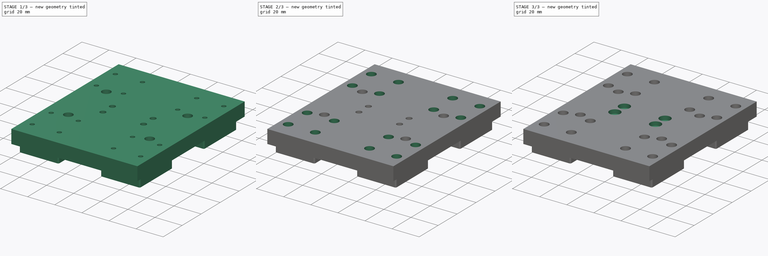
[diagram: build sequence overview — one tinted view per stage of 3, left to right]
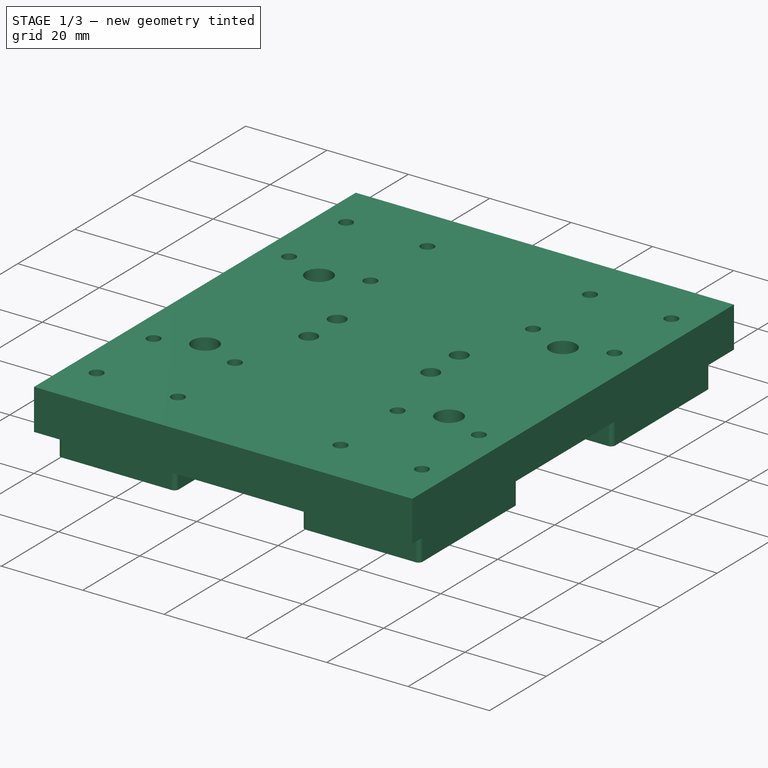
[diagram: stage 1 of 3 — iso view after this stage's code; geometry added in this stage tinted green]
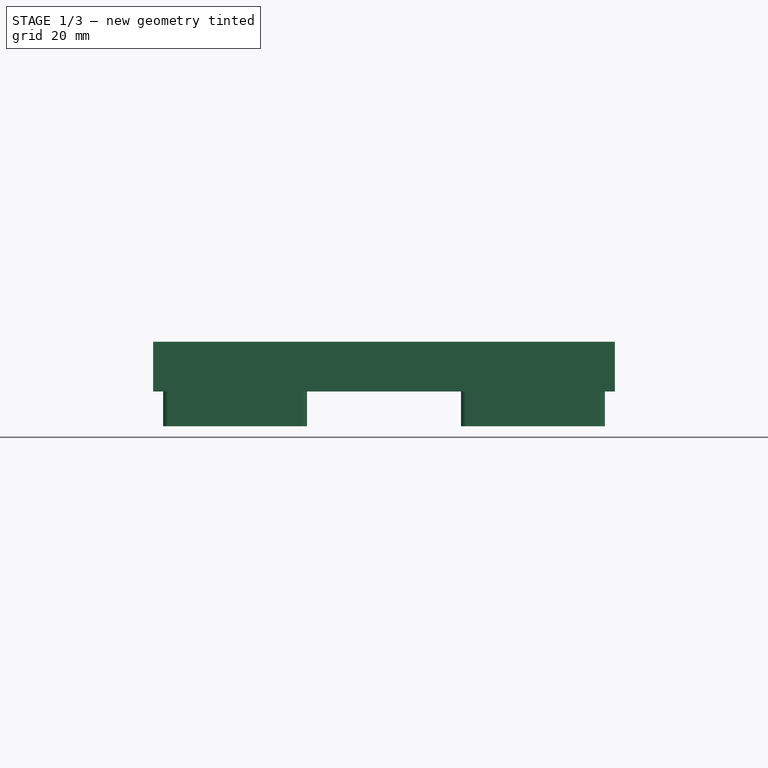
[diagram: stage 1 of 3 — front view after this stage's code; geometry added in this stage tinted green]
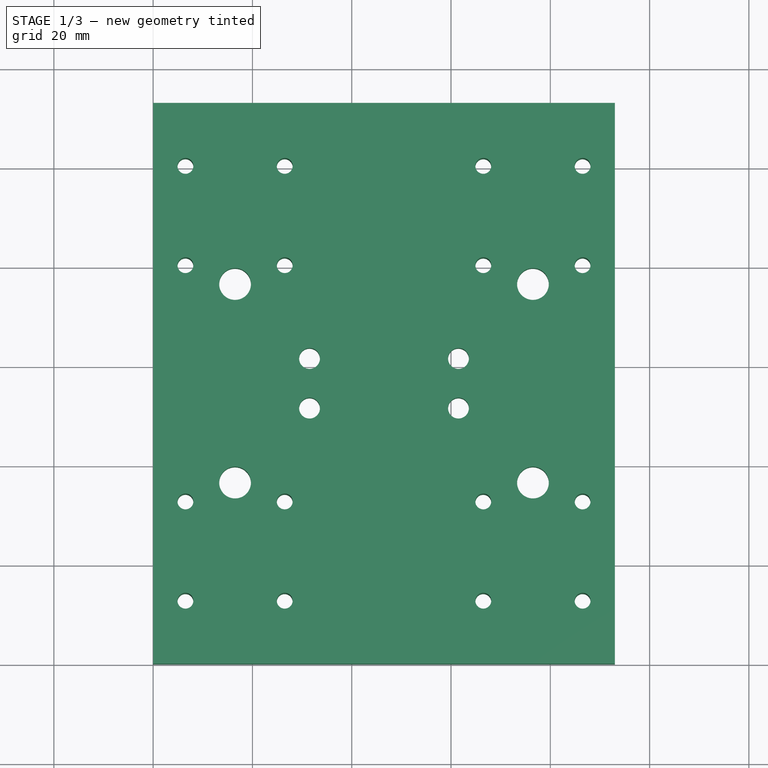
[diagram: stage 1 of 3 — top view after this stage's code; geometry added in this stage tinted green]
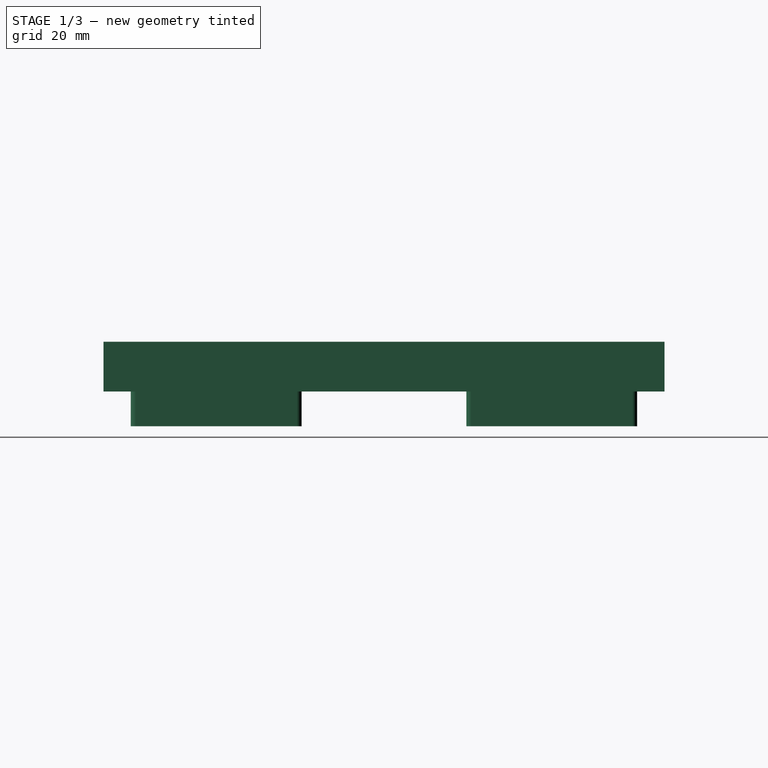
[diagram: stage 1 of 3 — right view after this stage's code; geometry added in this stage tinted green]
FCSTD DOCUMENT  (FreeCAD 0.19R24267 (Git))
Label: carriageplate-mgn12b
License: All rights reserved
LicenseURL: http://en.wikipedia.org/wiki/All_rights_reserved
objects: Sketcher::SketchObject×5, PartDesign::Pocket×4, PartDesign::Pad×1, PartDesign::Body×1
note: 16 computed .brp shape members not serialized (recipe doc carries the construction recipe); baked Part::Feature solids carry a one-line shape summary decoded from their .brp

FEATURE [Sketcher::SketchObject] Sketch  label="carriageplate-Bemaßung M3,M4,M6"
  FullyConstrained = true
  MapMode = 5
  Support = -> [XY_Plane]
  sketch-geometry (54):
    g0: LineSegment StartX=0 StartY=0 StartZ=0 EndX=93 EndY=0 EndZ=0
    g1: LineSegment StartX=93 StartY=0 StartZ=0 EndX=93 EndY=113 EndZ=0
    g2: LineSegment StartX=93 StartY=113 StartZ=0 EndX=0 EndY=113 EndZ=0
    g3: LineSegment StartX=0 StartY=113 StartZ=0 EndX=0 EndY=0 EndZ=0
    g4: LineSegment StartX=31.5 StartY=61.5 StartZ=0 EndX=61.5 EndY=61.5 EndZ=0
    g5: LineSegment StartX=61.5 StartY=61.5 StartZ=0 EndX=61.5 EndY=51.5 EndZ=0
    g6: LineSegment StartX=61.5 StartY=51.5 StartZ=0 EndX=31.5 EndY=51.5 EndZ=0
    g7: LineSegment StartX=31.5 StartY=51.5 StartZ=0 EndX=31.5 EndY=61.5 EndZ=0
    g8: Circle CenterX=31.5 CenterY=61.5 CenterZ=0 NormalX=0 NormalY=0 NormalZ=1 AngleXU=0 Radius=2.1
    g9: Circle CenterX=61.5 CenterY=61.5 CenterZ=0 NormalX=0 NormalY=0 NormalZ=1 AngleXU=0 Radius=2.1
    g10: Circle CenterX=61.5 CenterY=51.5 CenterZ=0 NormalX=0 NormalY=0 NormalZ=1 AngleXU=0 Radius=2.1
    g11: Circle CenterX=31.5 CenterY=51.5 CenterZ=0 NormalX=0 NormalY=0 NormalZ=1 AngleXU=0 Radius=2.1
    g12: LineSegment StartX=6.5 StartY=100.3 StartZ=0 EndX=26.5 EndY=100.3 EndZ=0
    g13: LineSegment StartX=26.5 StartY=100.3 StartZ=0 EndX=26.5 EndY=80.3 EndZ=0
    g14: LineSegment StartX=26.5 StartY=80.3 StartZ=0 EndX=6.5 EndY=80.3 EndZ=0
    g15: LineSegment StartX=6.5 StartY=80.3 StartZ=0 EndX=6.5 EndY=100.3 EndZ=0
    g16: Circle CenterX=6.5 CenterY=100.3 CenterZ=0 NormalX=0 NormalY=0 NormalZ=1 AngleXU=0 Radius=1.6
    g17: Circle CenterX=26.5 CenterY=100.3 CenterZ=0 NormalX=0 NormalY=0 NormalZ=1 AngleXU=0 Radius=1.6
    g18: Circle CenterX=26.5 CenterY=80.3 CenterZ=0 NormalX=0 NormalY=0 NormalZ=1 AngleXU=0 Radius=1.6
    g19: Circle CenterX=6.5 CenterY=80.3 CenterZ=0 NormalX=0 NormalY=0 NormalZ=1 AngleXU=0 Radius=1.6
    g20: Circle CenterX=26.5 CenterY=12.7 CenterZ=0 NormalX=0 NormalY=0 NormalZ=1 AngleXU=0 Radius=1.6
    g21: LineSegment StartX=26.5 StartY=12.7 StartZ=0 EndX=6.5 EndY=12.7 EndZ=0
    g22: Circle CenterX=6.5 CenterY=12.7 CenterZ=0 NormalX=0 NormalY=0 NormalZ=1 AngleXU=0 Radius=1.6
    g23: LineSegment StartX=6.5 StartY=12.7 StartZ=0 EndX=6.5 EndY=32.7 EndZ=0
    g24: Circle CenterX=6.5 CenterY=32.7 CenterZ=0 NormalX=0 NormalY=0 NormalZ=1 AngleXU=0 Radius=1.6
    g25: LineSegment StartX=6.5 StartY=32.7 StartZ=0 EndX=26.5 EndY=32.7 EndZ=0
    g26: Circle CenterX=26.5 CenterY=32.7 CenterZ=0 NormalX=0 NormalY=0 NormalZ=1 AngleXU=0 Radius=1.6
    g27: LineSegment StartX=26.5 StartY=32.7 StartZ=0 EndX=26.5 EndY=12.7 EndZ=0
    g28: Circle CenterX=66.5 CenterY=100.3 CenterZ=0 NormalX=0 NormalY=0 NormalZ=1 AngleXU=0 Radius=1.6
    g29: Circle CenterX=86.5 CenterY=100.3 CenterZ=0 NormalX=0 NormalY=0 NormalZ=1 AngleXU=0 Radius=1.6
    g30: LineSegment StartX=66.5 StartY=100.3 StartZ=0 EndX=86.5 EndY=100.3 EndZ=0
    g31: LineSegment StartX=86.5 StartY=100.3 StartZ=0 EndX=86.5 EndY=80.3 EndZ=0
    g32: Circle CenterX=86.5 CenterY=80.3 CenterZ=0 NormalX=0 NormalY=0 NormalZ=1 AngleXU=0 Radius=1.6
    g33: LineSegment StartX=86.5 StartY=80.3 StartZ=0 EndX=66.5 EndY=80.3 EndZ=0
    g34: Circle CenterX=66.5 CenterY=80.3 CenterZ=0 NormalX=0 NormalY=0 NormalZ=1 AngleXU=0 Radius=1.6
    g35: LineSegment StartX=66.5 StartY=80.3 StartZ=0 EndX=66.5 EndY=100.3 EndZ=0
    g36: LineSegment StartX=86.5 StartY=32.7 StartZ=0 EndX=86.5 EndY=12.7 EndZ=0
    g37: LineSegment StartX=86.5 StartY=12.7 StartZ=0 EndX=66.5 EndY=12.7 EndZ=0
    g38: LineSegment StartX=66.5 StartY=12.7 StartZ=0 EndX=66.5 EndY=32.7 EndZ=0
    g39: LineSegment StartX=66.5 StartY=32.7 StartZ=0 EndX=86.5 EndY=32.7 EndZ=0
    g40: Circle CenterX=66.5 CenterY=32.7 CenterZ=0 NormalX=0 NormalY=0 NormalZ=1 AngleXU=0 Radius=1.6
    g41: Circle CenterX=86.5 CenterY=32.7 CenterZ=0 NormalX=0 NormalY=0 NormalZ=1 AngleXU=0 Radius=1.6
    g42: Circle CenterX=86.5 CenterY=12.7 CenterZ=0 NormalX=0 NormalY=0 NormalZ=1 AngleXU=0 Radius=1.6
    g43: Circle CenterX=66.5 CenterY=12.7 CenterZ=0 NormalX=0 NormalY=0 NormalZ=1 AngleXU=0 Radius=1.6
    g44: LineSegment StartX=16.5 StartY=76.5 StartZ=0 EndX=76.5 EndY=76.5 EndZ=0
    g45: LineSegment StartX=76.5 StartY=76.5 StartZ=0 EndX=76.5 EndY=36.5 EndZ=0
    g46: LineSegment StartX=76.5 StartY=36.5 StartZ=0 EndX=16.5 EndY=36.5 EndZ=0
    g47: LineSegment StartX=16.5 StartY=36.5 StartZ=0 EndX=16.5 EndY=76.5 EndZ=0
    g48: Circle CenterX=16.5 CenterY=36.5 CenterZ=0 NormalX=0 NormalY=0 NormalZ=1 AngleXU=0 Radius=3.2
    g49: Circle CenterX=76.5 CenterY=36.5 CenterZ=0 NormalX=0 NormalY=0 NormalZ=1 AngleXU=0 Radius=3.2
    g50: Circle CenterX=76.5 CenterY=76.5 CenterZ=0 NormalX=0 NormalY=0 NormalZ=1 AngleXU=0 Radius=3.2
    g51: Circle CenterX=16.5 CenterY=76.5 CenterZ=0 NormalX=0 NormalY=0 NormalZ=1 AngleXU=0 Radius=3.2
    g52: LineSegment StartX=26.5 StartY=12.7 StartZ=0 EndX=66.5 EndY=12.7 EndZ=0
    g53: LineSegment StartX=66.5 StartY=100.3 StartZ=0 EndX=26.5 EndY=100.3 EndZ=0
  constraints (135):
    c: Coincident(g0,g1)
    c: Coincident(g1,g2)
    c: Coincident(g2,g3)
    c: Coincident(g3,g0)
    c: Horizontal(g0)
    c: Horizontal(g2)
    c: Vertical(g1)
    c: Vertical(g3)
    c: Coincident(g0,g-1)
    c: DistanceX(g2,g2) = 93
    c: DistanceY(g0,g2) = 113
    c: Coincident(g4,g5)
    c: Coincident(g5,g6)
    c: Coincident(g6,g7)
    c: Coincident(g7,g4)
    c: Horizontal(g4)
    c: Horizontal(g6)
    c: Vertical(g5)
    c: Vertical(g7)
    c: DistanceY(g7,g7) = 10
    c: DistanceX(g4,g4) = 30
    c: DistanceX(g0,g6) = 31.5
    c: Coincident(g8,g4)
    c: Coincident(g9,g4)
    c: Coincident(g10,g5)
    c: Coincident(g11,g6)
    c: Radius(g8) = 2.1
    c: Equal(g8,g9)
    c: Equal(g9,g10)
    c: Equal(g10,g11)
    c: Coincident(g12,g13)
    c: Coincident(g13,g14)
    c: Coincident(g14,g15)
    c: Coincident(g15,g12)
    c: Horizontal(g12)
    c: Horizontal(g14)
    c: Vertical(g13)
    c: Vertical(g15)
    c: DistanceX(g12,g12) = 20
    c: Equal(g12,g13)
    c: Coincident(g16,g12)
    c: Coincident(g17,g12)
    c: Coincident(g18,g13)
    c: Coincident(g19,g14)
    c: Radius(g16) = 1.6
    c: Equal(g16,g17)
    c: Equal(g17,g18)
    c: Equal(g18,g19)
    c: Coincident(g25,g27)
    c: Coincident(g27,g21)
    c: Coincident(g21,g23)
    c: Coincident(g23,g25)
    c: Horizontal(g25)
    c: Horizontal(g21)
    c: Vertical(g27)
    c: Vertical(g23)
    c: Equal(g12,g25) = 20
    c: Equal(g25,g27)
    c: Coincident(g24,g25)
    c: Coincident(g26,g25)
    c: Coincident(g20,g27)
    c: Coincident(g22,g21)
    c: Equal(g16,g24) = 1.6
    c: Equal(g24,g26)
    c: Equal(g26,g20)
    c: Equal(g20,g22)
    c: Coincident(g30,g31)
    c: Coincident(g31,g33)
    c: Coincident(g33,g35)
    c: Coincident(g35,g30)
    c: Horizontal(g30)
    c: Horizontal(g33)
    c: Vertical(g31)
    c: Vertical(g35)
    c: Equal(g12,g30) = 20
    c: Equal(g30,g31)
    c: Coincident(g28,g30)
    c: Coincident(g29,g30)
    c: Coincident(g32,g31)
    c: Coincident(g34,g33)
    c: Equal(g16,g28) = 1.6
    c: Equal(g28,g29)
    c: Equal(g29,g32)
    c: Equal(g32,g34)
    c: Coincident(g39,g36)
    c: Coincident(g36,g37)
    c: Coincident(g37,g38)
    c: Coincident(g38,g39)
    c: Horizontal(g39)
    c: Horizontal(g37)
    c: Vertical(g36)
    c: Vertical(g38)
    c: Equal(g39,g36)
    c: Coincident(g40,g39)
    c: Coincident(g41,g39)
    c: Coincident(g42,g36)
    c: Coincident(g43,g37)
    c: Equal(g40,g41)
    c: Equal(g41,g42)
    c: Equal(g42,g43)
    c: Equal(g40,g16)
    c: Equal(g39,g12)
    c: Coincident(g44,g45)
    c: Coincident(g45,g46)
    c: Coincident(g46,g47)
    c: Coincident(g47,g44)
    c: Horizontal(g44)
    c: Horizontal(g46)
    c: Vertical(g45)
    c: Vertical(g47)
    c: DistanceX(g0,g46) = 16.5
    c: DistanceY(g47,g47) = 40
    c: DistanceX(g44,g44) = 60
    c: DistanceY(g0,g46) = 36.5
    c: Coincident(g48,g46)
    c: Coincident(g49,g45)
    c: Coincident(g50,g44)
    c: Coincident(g51,g44)
    c: Radius(g51) = 3.2
    c: Equal(g51,g50)
    c: Equal(g50,g49)
    c: Equal(g49,g48)
    c: DistanceX(g40,g49) = 10
    c: Coincident(g52,g20)
    c: Coincident(g52,g43)
    c: Coincident(g53,g28)
    c: Coincident(g53,g17)
    c: Equal(g53,g52)
    c: DistanceX(g52,g52) = 40
    c: DistanceX(g50,g29) = 10
    c: Horizontal(g53)
    c: Horizontal(g52)
    c: DistanceY(g0,g10) = 51.5
    c: DistanceY(g16,g2) = 12.7
    c: DistanceY(g0,g42) = 12.7
FEATURE [PartDesign::Pad] Pad  label="Grundplatte mit M3,M4,M6"
  Direction = (1,1,1)
  Length = 17
  Length2 = 100
  Profile = -> Sketch
  Type = 0
FEATURE [Sketcher::SketchObject] Sketch001  label="Aussparung"
  AttachmentOffset = pos=(0,-84,0) rot=(0,0,1;0rad)
  FullyConstrained = true
  MapMode = 5
  Placement = pos=(0,84,0) rot=(1,0,0;3.14159rad)
  Support = -> [Pad]
  sketch-geometry (80):
    g0: LineSegment StartX=0 StartY=-29 StartZ=0 EndX=93 EndY=-29 EndZ=0
    g1: LineSegment StartX=93 StartY=-29 StartZ=0 EndX=93 EndY=84 EndZ=0
    g2: LineSegment StartX=93 StartY=84 StartZ=0 EndX=0 EndY=84 EndZ=0
    g3: LineSegment StartX=0 StartY=84 StartZ=0 EndX=0 EndY=-29 EndZ=0
    g4: LineSegment StartX=2 StartY=45.1 StartZ=0 EndX=2 EndY=77.5 EndZ=0
    g5: LineSegment StartX=3 StartY=78.5 StartZ=0 EndX=30 EndY=78.5 EndZ=0
    g6: LineSegment StartX=31 StartY=77.5 StartZ=0 EndX=31 EndY=45.1 EndZ=0
    g7: ArcOfCircle CenterX=3 CenterY=77.5 CenterZ=0 NormalX=0 NormalY=0 NormalZ=1 AngleXU=0 Radius=1 StartAngle=1.5708 EndAngle=3.14158
    g8: ArcOfCircle CenterX=30 CenterY=77.5 CenterZ=0 NormalX=0 NormalY=0 NormalZ=1 AngleXU=0 Radius=1 StartAngle=9.69976e-06 EndAngle=1.5708
    g9: ArcOfCircle CenterX=30 CenterY=45.1 CenterZ=0 NormalX=0 NormalY=0 NormalZ=1 AngleXU=0 Radius=1 StartAngle=4.71239 EndAngle=6.28319
    g10: ArcOfCircle CenterX=3 CenterY=45.1 CenterZ=0 NormalX=0 NormalY=0 NormalZ=1 AngleXU=0 Radius=1 StartAngle=3.14159 EndAngle=4.71239
    g11: LineSegment StartX=3 StartY=77.5 StartZ=0 EndX=30 EndY=77.5 EndZ=0
    g12: LineSegment StartX=30 StartY=77.5 StartZ=0 EndX=30 EndY=45.1 EndZ=0
    g13: LineSegment StartX=30 StartY=45.1 StartZ=0 EndX=3 EndY=45.1 EndZ=0
    g14: LineSegment StartX=3 StartY=45.1 StartZ=0 EndX=3 EndY=77.5 EndZ=0
    g15: LineSegment StartX=16.5 StartY=47.5 StartZ=0 EndX=76.5 EndY=47.5 EndZ=0
    g16: LineSegment StartX=76.5 StartY=47.5 StartZ=0 EndX=76.5 EndY=7.5 EndZ=0
    g17: LineSegment StartX=76.5 StartY=7.5 StartZ=0 EndX=16.5 EndY=7.5 EndZ=0
    g18: LineSegment StartX=16.5 StartY=7.5 StartZ=0 EndX=16.5 EndY=47.5 EndZ=0
    g19: ArcOfCircle CenterX=90 CenterY=45.1 CenterZ=0 NormalX=0 NormalY=0 NormalZ=1 AngleXU=0 Radius=1 StartAngle=4.71239 EndAngle=6.28319
    g20: LineSegment StartX=90 StartY=45.1 StartZ=0 EndX=63 EndY=45.1 EndZ=0
    g21: LineSegment StartX=91 StartY=77.5 StartZ=0 EndX=91 EndY=45.1 EndZ=0
    g22: LineSegment StartX=90 StartY=77.5 StartZ=0 EndX=90 EndY=45.1 EndZ=0
    g23: ArcOfCircle CenterX=63 CenterY=45.1 CenterZ=0 NormalX=0 NormalY=0 NormalZ=1 AngleXU=0 Radius=1 StartAngle=3.14159 EndAngle=4.71239
    g24: LineSegment StartX=62 StartY=45.1 StartZ=0 EndX=62 EndY=77.5 EndZ=0
    g25: LineSegment StartX=63 StartY=45.1 StartZ=0 EndX=63 EndY=77.5 EndZ=0
    g26: ArcOfCircle CenterX=63 CenterY=77.5 CenterZ=0 NormalX=0 NormalY=0 NormalZ=1 AngleXU=0 Radius=1 StartAngle=1.5708 EndAngle=3.14159
    g27: LineSegment StartX=63 StartY=78.5 StartZ=0 EndX=90 EndY=78.5 EndZ=0
    g28: LineSegment StartX=63 StartY=77.5 StartZ=0 EndX=90 EndY=77.5 EndZ=0
    g29: ArcOfCircle CenterX=90 CenterY=77.5 CenterZ=0 NormalX=0 NormalY=0 NormalZ=1 AngleXU=0 Radius=1 StartAngle=2.58721e-07 EndAngle=1.5708
    g30: LineSegment StartX=10 StartY=47.5 StartZ=0 EndX=10 EndY=45.1 EndZ=0
    g31: LineSegment StartX=23 StartY=47.5 StartZ=0 EndX=23 EndY=45.1 EndZ=0
    g32: LineSegment StartX=30 StartY=44.1 StartZ=0 EndX=24 EndY=44.1 EndZ=0
    g33: LineSegment StartX=3 StartY=44.1 StartZ=0 EndX=9 EndY=44.1 EndZ=0
    g34: ArcOfCircle CenterX=9 CenterY=45.1 CenterZ=0 NormalX=0 NormalY=0 NormalZ=1 AngleXU=0 Radius=1 StartAngle=4.71239 EndAngle=6.28319
    g35: ArcOfCircle CenterX=24 CenterY=45.1 CenterZ=0 NormalX=0 NormalY=0 NormalZ=1 AngleXU=0 Radius=1 StartAngle=3.14159 EndAngle=4.71239
    g36: ArcOfCircle CenterX=16.5 CenterY=47.5 CenterZ=0 NormalX=0 NormalY=0 NormalZ=1 AngleXU=0 Radius=6.5 StartAngle=0 EndAngle=3.14159
    g37: LineSegment StartX=90 StartY=44.1 StartZ=0 EndX=84 EndY=44.1 EndZ=0
    g38: ArcOfCircle CenterX=84 CenterY=45.1 CenterZ=0 NormalX=0 NormalY=0 NormalZ=1 AngleXU=0 Radius=1 StartAngle=3.14159 EndAngle=4.71239
    g39: LineSegment StartX=83 StartY=47.5 StartZ=0 EndX=83 EndY=45.1 EndZ=0
    g40: ArcOfCircle CenterX=76.5 CenterY=47.5 CenterZ=0 NormalX=0 NormalY=0 NormalZ=1 AngleXU=0 Radius=6.5 StartAngle=0 EndAngle=3.14159
    g41: LineSegment StartX=70 StartY=47.5 StartZ=0 EndX=70 EndY=45.1 EndZ=0
    g42: ArcOfCircle CenterX=69 CenterY=45.1 CenterZ=0 NormalX=0 NormalY=0 NormalZ=1 AngleXU=0 Radius=1 StartAngle=4.71239 EndAngle=6.28319
    g43: LineSegment StartX=63 StartY=44.1 StartZ=0 EndX=69 EndY=44.1 EndZ=0
    g44: LineSegment StartX=31 StartY=9.9 StartZ=0 EndX=31 EndY=-22.5 EndZ=0
    g45: LineSegment StartX=30 StartY=-23.5 StartZ=0 EndX=3 EndY=-23.5 EndZ=0
    g46: LineSegment StartX=2 StartY=-22.5 StartZ=0 EndX=2 EndY=9.9 EndZ=0
    g47: ArcOfCircle CenterX=30 CenterY=-22.5 CenterZ=0 NormalX=0 NormalY=0 NormalZ=1 AngleXU=0 Radius=1 StartAngle=4.71239 EndAngle=6.28319
    g48: ArcOfCircle CenterX=3 CenterY=-22.5 CenterZ=0 NormalX=0 NormalY=0 NormalZ=1 AngleXU=0 Radius=1 StartAngle=3.14159 EndAngle=4.71239
    g49: ArcOfCircle CenterX=3 CenterY=9.9 CenterZ=0 NormalX=0 NormalY=0 NormalZ=1 AngleXU=0 Radius=1 StartAngle=1.5708 EndAngle=3.14159
    g50: ArcOfCircle CenterX=30 CenterY=9.9 CenterZ=0 NormalX=0 NormalY=0 NormalZ=1 AngleXU=0 Radius=1 StartAngle=-1.8e-15 EndAngle=1.5708
    g51: LineSegment StartX=30 StartY=-22.5 StartZ=0 EndX=3 EndY=-22.5 EndZ=0
    g52: LineSegment StartX=3 StartY=-22.5 StartZ=0 EndX=3 EndY=9.9 EndZ=0
    g53: LineSegment StartX=3 StartY=9.9 StartZ=0 EndX=30 EndY=9.9 EndZ=0
    g54: LineSegment StartX=30 StartY=9.9 StartZ=0 EndX=30 EndY=-22.5 EndZ=0
    g55: LineSegment StartX=23 StartY=7.5 StartZ=0 EndX=23 EndY=9.9 EndZ=0
    g56: LineSegment StartX=10 StartY=7.5 StartZ=0 EndX=10 EndY=9.9 EndZ=0
    g57: LineSegment StartX=3 StartY=10.9 StartZ=0 EndX=9 EndY=10.9 EndZ=0
    g58: LineSegment StartX=30 StartY=10.9 StartZ=0 EndX=24 EndY=10.9 EndZ=0
    g59: ArcOfCircle CenterX=24 CenterY=9.9 CenterZ=0 NormalX=0 NormalY=0 NormalZ=1 AngleXU=0 Radius=1 StartAngle=1.5708 EndAngle=3.14159
    g60: ArcOfCircle CenterX=9 CenterY=9.9 CenterZ=0 NormalX=0 NormalY=0 NormalZ=1 AngleXU=0 Radius=1 StartAngle=0 EndAngle=1.5708
    g61: ArcOfCircle CenterX=16.5 CenterY=7.5 CenterZ=0 NormalX=0 NormalY=0 NormalZ=1 AngleXU=0 Radius=6.5 StartAngle=3.14159 EndAngle=6.28319
    g62: LineSegment StartX=91 StartY=9.9 StartZ=0 EndX=91 EndY=-22.5 EndZ=0
    g63: LineSegment StartX=90 StartY=-23.5 StartZ=0 EndX=63 EndY=-23.5 EndZ=0
    g64: LineSegment StartX=62 StartY=-22.5 StartZ=0 EndX=62 EndY=9.9 EndZ=0
    g65: ArcOfCircle CenterX=90 CenterY=-22.5 CenterZ=0 NormalX=0 NormalY=0 NormalZ=1 AngleXU=0 Radius=1 StartAngle=4.71239 EndAngle=6.28319
    g66: ArcOfCircle CenterX=63 CenterY=-22.5 CenterZ=0 NormalX=0 NormalY=0 NormalZ=1 AngleXU=0 Radius=1 StartAngle=3.14159 EndAngle=4.71239
    g67: ArcOfCircle CenterX=63 CenterY=9.9 CenterZ=0 NormalX=0 NormalY=0 NormalZ=1 AngleXU=0 Radius=1 StartAngle=1.5708 EndAngle=3.14159
    g68: ArcOfCircle CenterX=90 CenterY=9.9 CenterZ=0 NormalX=0 NormalY=0 NormalZ=1 AngleXU=0 Radius=1 StartAngle=3e-16 EndAngle=1.5708
    g69: LineSegment StartX=90 StartY=-22.5 StartZ=0 EndX=63 EndY=-22.5 EndZ=0
    g70: LineSegment StartX=63 StartY=-22.5 StartZ=0 EndX=63 EndY=9.9 EndZ=0
    g71: LineSegment StartX=63 StartY=9.9 StartZ=0 EndX=90 EndY=9.9 EndZ=0
    g72: LineSegment StartX=90 StartY=9.9 StartZ=0 EndX=90 EndY=-22.5 EndZ=0
    g73: LineSegment StartX=83 StartY=7.5 StartZ=0 EndX=83 EndY=9.9 EndZ=0
    g74: LineSegment StartX=70 StartY=7.5 StartZ=0 EndX=70 EndY=9.9 EndZ=0
    g75: LineSegment StartX=63 StartY=10.9 StartZ=0 EndX=69 EndY=10.9 EndZ=0
    g76: LineSegment StartX=90 StartY=10.9 StartZ=0 EndX=84 EndY=10.9 EndZ=0
    g77: ArcOfCircle CenterX=84 CenterY=9.9 CenterZ=0 NormalX=0 NormalY=0 NormalZ=1 AngleXU=0 Radius=1 StartAngle=1.5708 EndAngle=3.14159
    g78: ArcOfCircle CenterX=69 CenterY=9.9 CenterZ=0 NormalX=0 NormalY=0 NormalZ=1 AngleXU=0 Radius=1 StartAngle=0 EndAngle=1.5708
    g79: ArcOfCircle CenterX=76.5 CenterY=7.5 CenterZ=0 NormalX=0 NormalY=0 NormalZ=1 AngleXU=0 Radius=6.5 StartAngle=3.14159 EndAngle=6.28319
  constraints (248):
    c: Coincident(g0,g1)
    c: Coincident(g1,g2)
    c: Coincident(g2,g3)
    c: Coincident(g3,g0)
    c: DistanceX(g2,g2) = 93
    c: DistanceY(g1,g1) = 113
    c: Coincident(g7,g4)
    c: Coincident(g7,g5)
    c: Coincident(g8,g5)
    c: Coincident(g8,g6)
    c: Coincident(g9,g6)
    c: Coincident(g10,g4)
    c: Radius(g7) = 1
    c: Coincident(g11,g12)
    c: Coincident(g12,g13)
    c: Coincident(g13,g14)
    c: Coincident(g14,g11)
    c: Coincident(g11,g8)
    c: Coincident(g12,g9)
    c: Coincident(g13,g10)
    c: Coincident(g15,g16)
    c: Coincident(g16,g17)
    c: Coincident(g17,g18)
    c: Coincident(g18,g15)
    c: DistanceX(g15,g15) = 60
    c: DistanceY(g16,g16) = 40
    c: DistanceY(g12,g12) = 32.4
    c: DistanceX(g11,g11) = 27
    c: DistanceY(g0,g17) = 36.5
    c: DistanceX(g0,g17) = 16.5
    c: Coincident(g26,g24)
    c: Coincident(g26,g27)
    c: Coincident(g29,g27)
    c: Coincident(g29,g21)
    c: Coincident(g19,g21)
    c: Coincident(g23,g24)
    c: Coincident(g28,g22)
    c: Coincident(g22,g20)
    c: Coincident(g20,g25)
    c: Coincident(g25,g28)
    c: Coincident(g28,g29)
    c: Coincident(g22,g19)
    c: Coincident(g20,g23)
    c: DistanceX(g15,g8) = 13.5
    c: DistanceY(g0,g-1) = 29
    c: PointOnObject(g0,g-2)
    c: DistanceY(g7,g2) = 6.5
    c: Coincident(g33,g10)
    c: PointOnObject(g34,g13)
    c: Coincident(g34,g33)
    c: Coincident(g34,g30)
    c: Coincident(g32,g9)
    c: Coincident(g35,g32)
    c: Coincident(g35,g31)
    c: Coincident(g36,g31)
    c: Coincident(g36,g30)
    c: Coincident(g36,g15)
    c: Radius(g36) = 6.5
    c: Coincident(g42,g43)
    c: Coincident(g42,g41)
    c: Coincident(g38,g37)
    c: Coincident(g38,g39)
    c: Coincident(g40,g39)
    c: Coincident(g40,g41)
    c: Coincident(g40,g15)
    c: Coincident(g43,g23)
    c: Coincident(g37,g19)
    c: PointOnObject(g38,g20)
    c: Horizontal(g11)
    c: Vertical(g12)
    c: Horizontal(g13)
    c: Vertical(g14)
    c: Vertical(g6)
    c: Horizontal(g5)
    c: Horizontal(g32)
    c: Horizontal(g33)
    c: Vertical(g31)
    c: Vertical(g30)
    c: Coincident(g7,g11)
    c: Vertical(g4)
    c: PointOnObject(g35,g13)
    c: Equal(g7,g8)
    c: Equal(g8,g9)
    c: Equal(g35,g34)
    c: Horizontal(g10,g4)
    c: Vertical(g10,g10)
    c: Horizontal(g34,g30)
    c: Horizontal(g36,g30)
    c: Horizontal(g30,g31)
    c: Vertical(g35,g32)
    c: Horizontal(g35,g31)
    c: Vertical(g9,g9)
    c: Horizontal(g6,g9)
    c: Vertical(g33,g34)
    c: Vertical(g5,g8)
    c: Vertical(g18)
    c: Horizontal(g15)
    c: Vertical(g16)
    c: Horizontal(g17)
    c: Horizontal(g2)
    c: Vertical(g1)
    c: Vertical(g3)
    c: Horizontal(g0)
    c: Vertical(g25)
    c: Vertical(g22)
    c: Horizontal(g28)
    c: Horizontal(g20)
    c: Horizontal(g27)
    c: Horizontal(g43)
    c: Horizontal(g37)
    c: Vertical(g24)
    c: Vertical(g21)
    c: Vertical(g39)
    c: Vertical(g41)
    c: Equal(g26,g29)
    c: Equal(g29,g19)
    c: Equal(g19,g38)
    c: Equal(g38,g42)
    c: Equal(g26,g7)
    c: Equal(g36,g40)
    c: Equal(g28,g11)
    c: Coincident(g26,g25)
    c: Equal(g25,g12)
    c: Horizontal(g40,g40)
    c: Horizontal(g40,g39)
    c: PointOnObject(g42,g20)
    c: Horizontal(g41,g42)
    c: Horizontal(g38,g38)
    c: Vertical(g42,g42)
    c: Vertical(g38,g37)
    c: Horizontal(g19,g19)
    c: Horizontal(g23,g23)
    c: Vertical(g26,g26)
    c: Horizontal(g24,g26)
    c: DistanceY(g29,g1) = 6.5
    c: Equal(g43,g37)
    c: Coincident(g47,g44)
    c: Coincident(g47,g45)
    c: Coincident(g48,g45)
    c: Coincident(g48,g46)
    c: Coincident(g49,g46)
    c: Coincident(g50,g44)
    c: Radius(g47) = 1
    c: Coincident(g51,g52)
    c: Coincident(g52,g53)
    c: Coincident(g53,g54)
    c: Coincident(g54,g51)
    c: Coincident(g51,g48)
    c: Coincident(g52,g49)
    c: Coincident(g53,g50)
    c: Coincident(g58,g50)
    c: PointOnObject(g59,g53)
    c: Coincident(g59,g58)
    c: Coincident(g59,g55)
    c: Coincident(g57,g49)
    c: Coincident(g60,g57)
    c: Coincident(g60,g56)
    c: Coincident(g61,g56)
    c: Coincident(g61,g55)
    c: Radius(g61) = 6.5
    c: Horizontal(g51)
    c: Vertical(g52)
    c: Vertical(g54)
    c: Vertical(g46)
    c: Horizontal(g45)
    c: Horizontal(g57)
    c: Horizontal(g58)
    c: Vertical(g56)
    c: Vertical(g55)
    c: Coincident(g47,g51)
    c: Vertical(g44)
    c: PointOnObject(g60,g53)
    c: Coincident(g61,g17)
    c: DistanceY(g0,g48) = 6.5
    c: Horizontal(g53)
    c: Equal(g51,g45)
    c: Equal(g44,g54)
    c: Equal(g52,g46)
    c: Equal(g58,g57)
    c: Equal(g55,g56)
    c: Horizontal(g46,g48)
    c: Horizontal(g47,g44)
    c: Vertical(g45,g48)
    c: Vertical(g49,g49)
    c: Vertical(g50,g50)
    c: Vertical(g59,g58)
    c: Vertical(g60,g57)
    c: Horizontal(g59,g55)
    c: Horizontal(g55,g56)
    c: Equal(g53,g13)
    c: Equal(g14,g52)
    c: Horizontal(g56,g61)
    c: Coincident(g65,g62)
    c: Coincident(g65,g63)
    c: Coincident(g66,g63)
    c: Coincident(g66,g64)
    c: Coincident(g67,g64)
    c: Coincident(g68,g62)
    c: Equal(g47,g65) = 1
    c: Coincident(g69,g70)
    c: Coincident(g70,g71)
    c: Coincident(g71,g72)
    c: Coincident(g72,g69)
    c: Coincident(g69,g66)
    c: Coincident(g70,g67)
    c: Coincident(g71,g68)
    c: Coincident(g76,g68)
    c: PointOnObject(g77,g71)
    c: Coincident(g77,g76)
    c: Coincident(g77,g73)
    c: Coincident(g75,g67)
    c: Coincident(g78,g75)
    c: Coincident(g78,g74)
    c: Horizontal(g69)
    c: Vertical(g70)
    c: Vertical(g72)
    c: Vertical(g64)
    c: Horizontal(g63)
    c: Horizontal(g75)
    c: Horizontal(g76)
    c: Vertical(g74)
    c: Vertical(g73)
    c: Coincident(g65,g69)
    c: Vertical(g62)
    c: PointOnObject(g78,g71)
    c: Horizontal(g71)
    c: Equal(g69,g63)
    c: Coincident(g79,g16)
    c: Coincident(g79,g73)
    c: Coincident(g79,g74)
    c: Horizontal(g74,g78)
    c: Horizontal(g73,g77)
    c: Vertical(g77,g76)
    c: Vertical(g78,g75)
    c: Vertical(g67,g67)
    c: Vertical(g66,g63)
    c: Horizontal(g64,g66)
    c: Horizontal(g65,g62)
    c: Vertical(g68,g68)
    c: Horizontal(g62,g68)
    c: Horizontal(g67,g64)
    c: DistanceY(g0,g65) = 6.5
    c: Equal(g76,g75)
    c: Equal(g79,g61)
    c: Horizontal(g74,g79)
    c: Horizontal(g79,g73)
    c: Equal(g71,g53)
    c: Equal(g70,g54)
FEATURE [PartDesign::Pocket] Pocket  label="Aussparung Zwischenbereich"
  BaseFeature = -> Pad
  Length = 7
  Length2 = 100
  Profile = -> Sketch001
  Type = 0
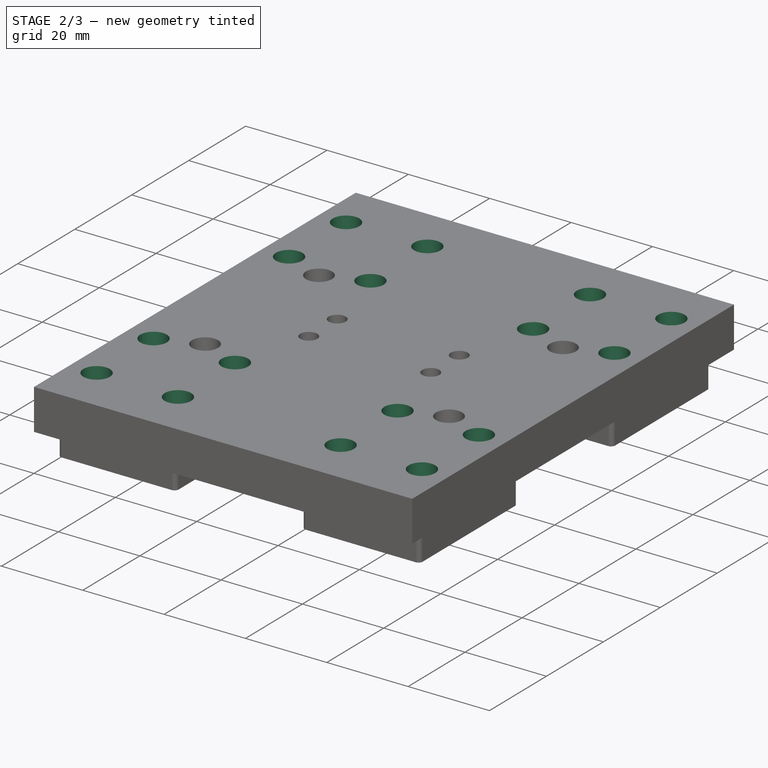
[diagram: stage 2 of 3 — iso view after this stage's code; geometry added in this stage tinted green]
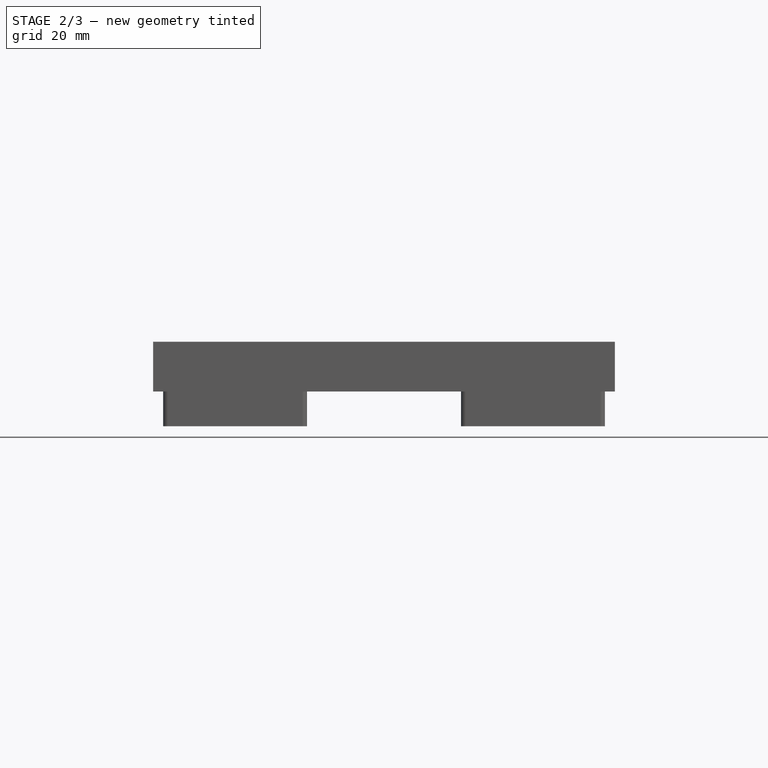
[diagram: stage 2 of 3 — front view after this stage's code; geometry added in this stage tinted green]
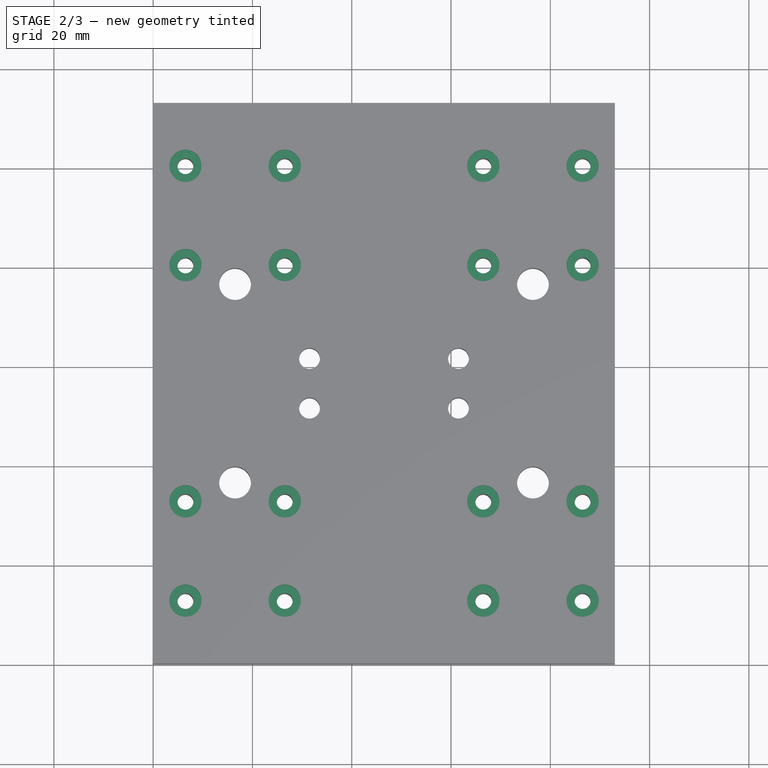
[diagram: stage 2 of 3 — top view after this stage's code; geometry added in this stage tinted green]
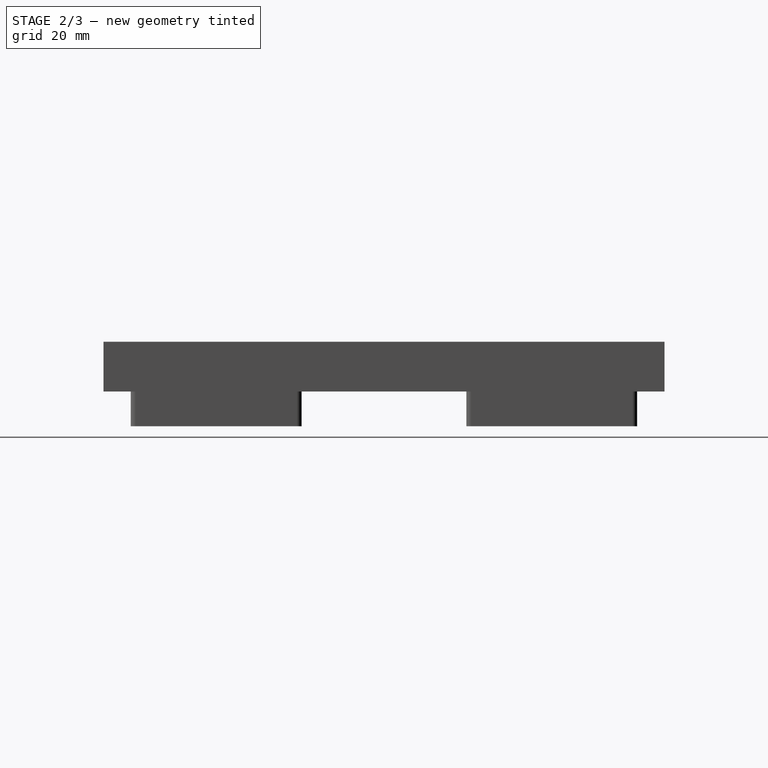
[diagram: stage 2 of 3 — right view after this stage's code; geometry added in this stage tinted green]
FEATURE [Sketcher::SketchObject] Sketch003  label="M3 Skizze"
  FullyConstrained = true
  MapMode = 5
  Placement = pos=(0,0,17) rot=(0,0,1;0rad)
  Support = -> [Pocket]
  sketch-geometry (36):
    g0: LineSegment StartX=6.5 StartY=100.3 StartZ=0 EndX=26.5 EndY=100.3 EndZ=0
    g1: LineSegment StartX=26.5 StartY=100.3 StartZ=0 EndX=26.5 EndY=80.3 EndZ=0
    g2: LineSegment StartX=26.5 StartY=80.3 StartZ=0 EndX=6.5 EndY=80.3 EndZ=0
    g3: LineSegment StartX=6.5 StartY=80.3 StartZ=0 EndX=6.5 EndY=100.3 EndZ=0
    g4: LineSegment StartX=16.5 StartY=76.5 StartZ=0 EndX=76.5 EndY=76.5 EndZ=0
    g5: LineSegment StartX=76.5 StartY=76.5 StartZ=0 EndX=76.5 EndY=36.5 EndZ=0
    g6: LineSegment StartX=76.5 StartY=36.5 StartZ=0 EndX=16.5 EndY=36.5 EndZ=0
    g7: LineSegment StartX=16.5 StartY=36.5 StartZ=0 EndX=16.5 EndY=76.5 EndZ=0
    g8: Circle CenterX=6.5 CenterY=100.3 CenterZ=0 NormalX=0 NormalY=0 NormalZ=1 AngleXU=0 Radius=3.25
    g9: Circle CenterX=26.5 CenterY=100.3 CenterZ=0 NormalX=0 NormalY=0 NormalZ=1 AngleXU=0 Radius=3.25
    g10: Circle CenterX=26.5 CenterY=80.3 CenterZ=0 NormalX=0 NormalY=0 NormalZ=1 AngleXU=0 Radius=3.25
    g11: Circle CenterX=6.5 CenterY=80.3 CenterZ=0 NormalX=0 NormalY=0 NormalZ=1 AngleXU=0 Radius=3.25
    g12: Circle CenterX=66.5 CenterY=100.3 CenterZ=0 NormalX=0 NormalY=0 NormalZ=1 AngleXU=0 Radius=3.25
    g13: Circle CenterX=66.5 CenterY=80.3 CenterZ=0 NormalX=0 NormalY=0 NormalZ=1 AngleXU=0 Radius=3.25
    g14: LineSegment StartX=66.5 StartY=80.3 StartZ=0 EndX=66.5 EndY=100.3 EndZ=0
    g15: LineSegment StartX=86.5 StartY=80.3 StartZ=0 EndX=66.5 EndY=80.3 EndZ=0
    g16: Circle CenterX=86.5 CenterY=80.3 CenterZ=0 NormalX=0 NormalY=0 NormalZ=1 AngleXU=0 Radius=3.25
    g17: LineSegment StartX=86.5 StartY=100.3 StartZ=0 EndX=86.5 EndY=80.3 EndZ=0
    g18: LineSegment StartX=66.5 StartY=100.3 StartZ=0 EndX=86.5 EndY=100.3 EndZ=0
    g19: Circle CenterX=86.5 CenterY=100.3 CenterZ=0 NormalX=0 NormalY=0 NormalZ=1 AngleXU=0 Radius=3.25
    g20: Circle CenterX=86.5 CenterY=12.7 CenterZ=0 NormalX=0 NormalY=0 NormalZ=1 AngleXU=0 Radius=3.25
    g21: Circle CenterX=66.5 CenterY=12.7 CenterZ=0 NormalX=0 NormalY=0 NormalZ=1 AngleXU=0 Radius=3.25
    g22: Circle CenterX=66.5 CenterY=32.7 CenterZ=0 NormalX=0 NormalY=0 NormalZ=1 AngleXU=0 Radius=3.25
    g23: Circle CenterX=86.5 CenterY=32.7 CenterZ=0 NormalX=0 NormalY=0 NormalZ=1 AngleXU=0 Radius=3.25
    g24: LineSegment StartX=86.5 StartY=32.7 StartZ=0 EndX=86.5 EndY=12.7 EndZ=0
    g25: LineSegment StartX=86.5 StartY=12.7 StartZ=0 EndX=66.5 EndY=12.7 EndZ=0
    g26: LineSegment StartX=66.5 StartY=12.7 StartZ=0 EndX=66.5 EndY=32.7 EndZ=0
    g27: LineSegment StartX=66.5 StartY=32.7 StartZ=0 EndX=86.5 EndY=32.7 EndZ=0
    g28: Circle CenterX=6.5 CenterY=32.7 CenterZ=0 NormalX=0 NormalY=0 NormalZ=1 AngleXU=0 Radius=3.25
    g29: Circle CenterX=26.5 CenterY=32.7 CenterZ=0 NormalX=0 NormalY=0 NormalZ=1 AngleXU=0 Radius=3.25
    g30: Circle CenterX=26.5 CenterY=12.7 CenterZ=0 NormalX=0 NormalY=0 NormalZ=1 AngleXU=0 Radius=3.25
    g31: Circle CenterX=6.5 CenterY=12.7 CenterZ=0 NormalX=0 NormalY=0 NormalZ=1 AngleXU=0 Radius=3.25
    g32: LineSegment StartX=6.5 StartY=12.7 StartZ=0 EndX=6.5 EndY=32.7 EndZ=0
    g33: LineSegment StartX=6.5 StartY=32.7 StartZ=0 EndX=26.5 EndY=32.7 EndZ=0
    g34: LineSegment StartX=26.5 StartY=32.7 StartZ=0 EndX=26.5 EndY=12.7 EndZ=0
    g35: LineSegment StartX=26.5 StartY=12.7 StartZ=0 EndX=6.5 EndY=12.7 EndZ=0
  constraints (92):
    c: Coincident(g0,g1)
    c: Coincident(g1,g2)
    c: Coincident(g2,g3)
    c: Coincident(g3,g0)
    c: Horizontal(g0)
    c: Horizontal(g2)
    c: Vertical(g1)
    c: Vertical(g3)
    c: Equal(g0,g1)
    c: DistanceX(g0,g0) = 20
    c: Coincident(g4,g5)
    c: Coincident(g5,g6)
    c: Coincident(g6,g7)
    c: Coincident(g7,g4)
    c: Horizontal(g4)
    c: Horizontal(g6)
    c: Vertical(g5)
    c: Vertical(g7)
    c: DistanceX(g4,g4) = 60
    c: DistanceY(g5,g5) = 40
    c: DistanceY(g-1,g6) = 36.5
    c: DistanceX(g-1,g6) = 16.5
    c: DistanceX(g4,g1) = 10
    c: DistanceY(g-1,g2) = 80.3
    c: Coincident(g8,g0)
    c: Coincident(g9,g0)
    c: Coincident(g10,g1)
    c: Coincident(g11,g2)
    c: Equal(g8,g9)
    c: Equal(g9,g10)
    c: Equal(g10,g11)
    c: Radius(g8) = 3.25
    c: Coincident(g18,g17)
    c: Coincident(g17,g15)
    c: Coincident(g15,g14)
    c: Coincident(g14,g18)
    c: Horizontal(g18)
    c: Horizontal(g15)
    c: Vertical(g17)
    c: Vertical(g14)
    c: Equal(g18,g17)
    c: Equal(g0,g18) = 20
    c: Coincident(g12,g18)
    c: Coincident(g19,g18)
    c: Coincident(g16,g17)
    c: Coincident(g13,g15)
    c: Equal(g12,g19)
    c: Equal(g19,g16)
    c: Equal(g16,g13)
    c: Equal(g8,g12) = 2.75
    c: Horizontal(g12,g9)
    c: DistanceX(g9,g12) = 40
    c: Coincident(g27,g24)
    c: Coincident(g24,g25)
    c: Coincident(g25,g26)
    c: Coincident(g26,g27)
    c: Horizontal(g27)
    c: Horizontal(g25)
    c: Vertical(g24)
    c: Vertical(g26)
    c: Equal(g27,g24)
    c: Coincident(g22,g27)
    c: Coincident(g23,g27)
    c: Coincident(g20,g24)
    c: Coincident(g21,g25)
    c: Equal(g22,g23)
    c: Equal(g23,g20)
    c: Equal(g20,g21)
    c: Vertical(g16,g23)
    c: DistanceY(g23,g16) = 47.6
    c: Equal(g27,g15)
    c: Coincident(g33,g34)
    c: Coincident(g34,g35)
    c: Coincident(g35,g32)
    c: Coincident(g32,g33)
    c: Horizontal(g33)
    c: Horizontal(g35)
    c: Vertical(g34)
    c: Vertical(g32)
    c: Equal(g33,g34)
    c: Coincident(g28,g33)
    c: Coincident(g29,g33)
    c: Coincident(g30,g34)
    c: Coincident(g31,g35)
    c: Equal(g28,g29)
    c: Equal(g29,g30)
    c: Equal(g30,g31)
    c: Equal(g34,g26)
    c: Horizontal(g29,g22)
    c: Vertical(g28,g11)
    c: Equal(g29,g11)
    c: Equal(g22,g10)
FEATURE [PartDesign::Pocket] Pocket001  label="M3 Sekung"
  BaseFeature = -> Pocket
  Length = 3.2
  Length2 = 100
  Profile = -> Sketch003
  Type = 0
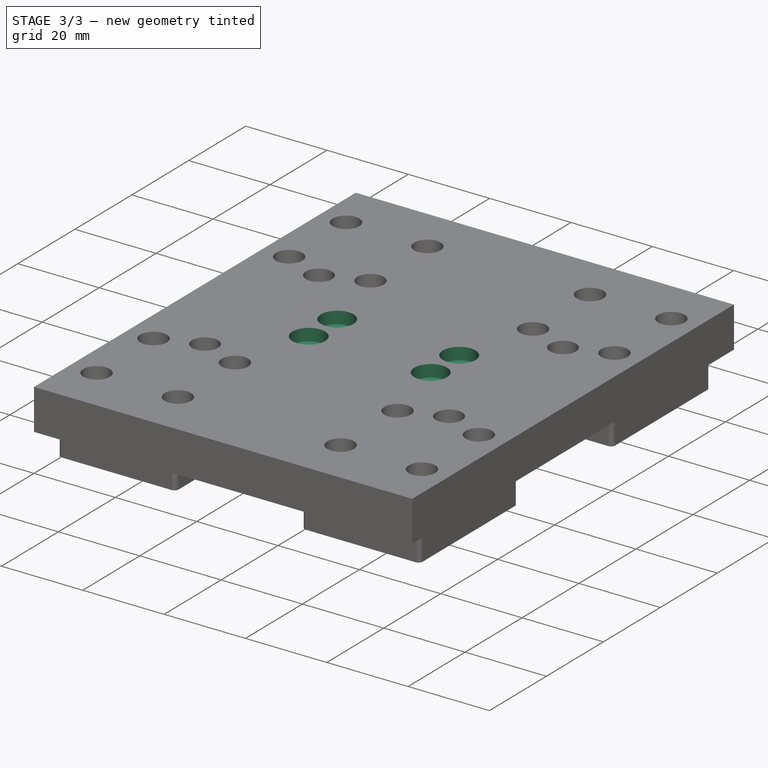
[diagram: stage 3 of 3 — iso view after this stage's code; geometry added in this stage tinted green]
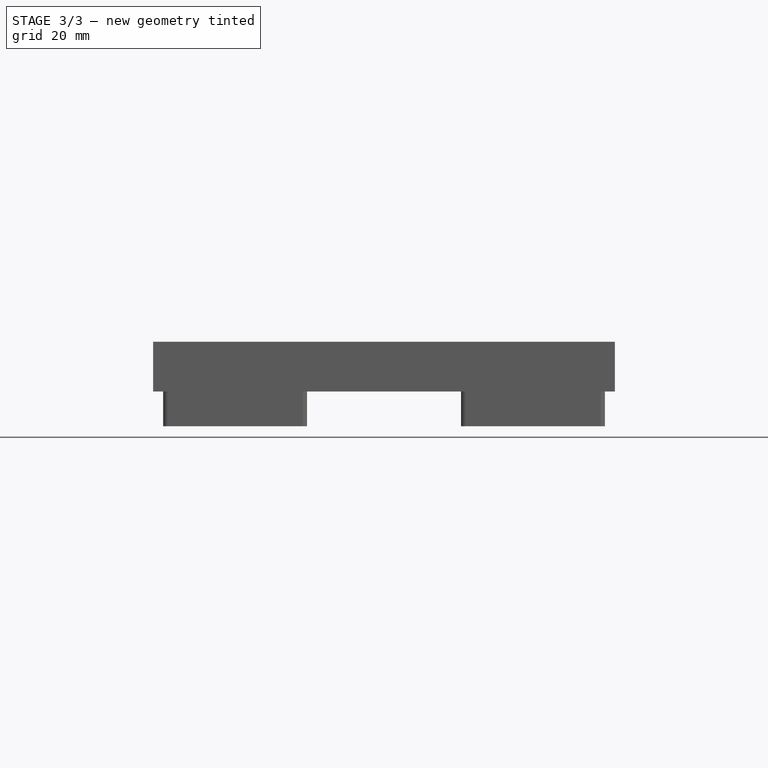
[diagram: stage 3 of 3 — front view after this stage's code; geometry added in this stage tinted green]
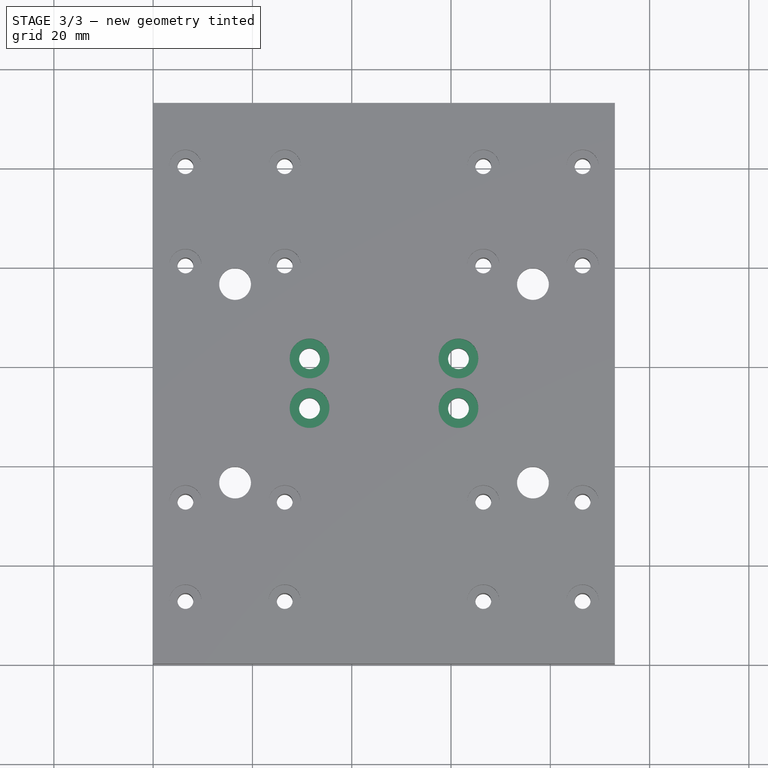
[diagram: stage 3 of 3 — top view after this stage's code; geometry added in this stage tinted green]
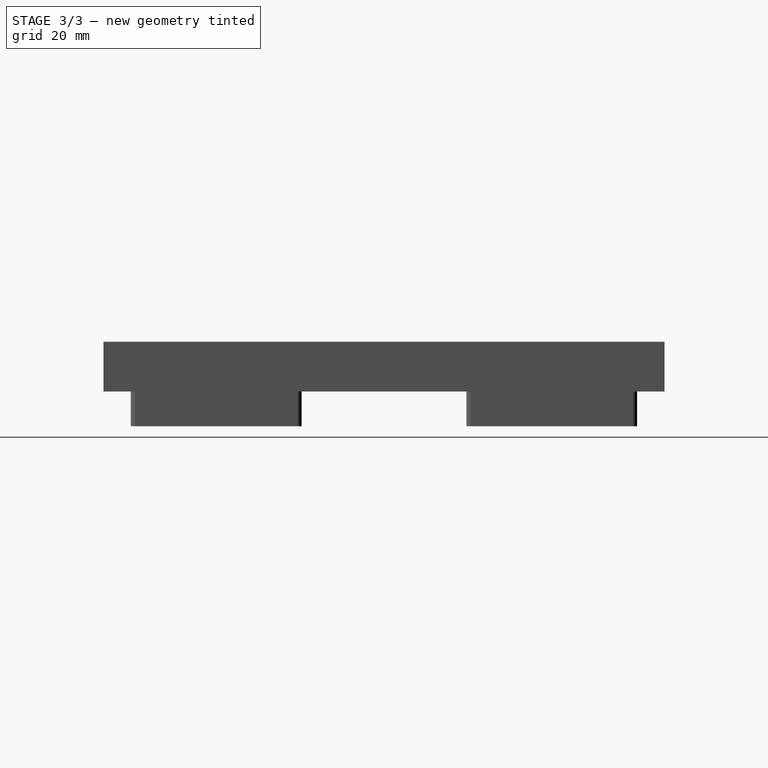
[diagram: stage 3 of 3 — right view after this stage's code; geometry added in this stage tinted green]
FEATURE [Sketcher::SketchObject] Sketch004  label="M4 Skizze"
  FullyConstrained = true
  MapMode = 5
  Placement = pos=(0,0,17) rot=(0,0,1;0rad)
  Support = -> [Pocket001]
  sketch-geometry (8):
    g0: LineSegment StartX=31.5 StartY=61.5 StartZ=0 EndX=61.5 EndY=61.5 EndZ=0
    g1: LineSegment StartX=61.5 StartY=61.5 StartZ=0 EndX=61.5 EndY=51.5 EndZ=0
    g2: LineSegment StartX=61.5 StartY=51.5 StartZ=0 EndX=31.5 EndY=51.5 EndZ=0
    g3: LineSegment StartX=31.5 StartY=51.5 StartZ=0 EndX=31.5 EndY=61.5 EndZ=0
    g4: Circle CenterX=31.5 CenterY=61.5 CenterZ=0 NormalX=0 NormalY=0 NormalZ=1 AngleXU=0 Radius=4
    g5: Circle CenterX=31.5 CenterY=51.5 CenterZ=0 NormalX=0 NormalY=0 NormalZ=1 AngleXU=0 Radius=4
    g6: Circle CenterX=61.5 CenterY=51.5 CenterZ=0 NormalX=0 NormalY=0 NormalZ=1 AngleXU=0 Radius=4
    g7: Circle CenterX=61.5 CenterY=61.5 CenterZ=0 NormalX=0 NormalY=0 NormalZ=1 AngleXU=0 Radius=4
  constraints (20):
    c: Coincident(g0,g1)
    c: Coincident(g1,g2)
    c: Coincident(g2,g3)
    c: Coincident(g3,g0)
    c: Horizontal(g0)
    c: Horizontal(g2)
    c: Vertical(g1)
    c: Vertical(g3)
    c: DistanceX(g0,g0) = 30
    c: DistanceY(g1,g1) = 10
    c: DistanceY(g-1,g2) = 51.5
    c: DistanceX(g-1,g0) = 31.5
    c: Coincident(g4,g0)
    c: Coincident(g5,g2)
    c: Coincident(g6,g1)
    c: Coincident(g7,g0)
    c: Equal(g4,g7)
    c: Equal(g7,g6)
    c: Equal(g6,g5)
    c: Radius(g4) = 4
FEATURE [PartDesign::Pocket] Pocket002  label="M4 Senkung"
  BaseFeature = -> Pocket001
  Length = 3
  Length2 = 100
  Profile = -> Sketch004
  Type = 0
FEATURE [Sketcher::SketchObject] Sketch005  label="M6 Sechskantmutter Skizze"
  AttachmentOffset = pos=(0,-113,0) rot=(0,0,1;0rad)
  FullyConstrained = true
  MapMode = 5
  Placement = pos=(0,113,7) rot=(1,0,0;3.14159rad)
  Support = -> [Pocket002]
  sketch-geometry (32):
    g0: LineSegment StartX=16.5 StartY=76.5 StartZ=0 EndX=76.5 EndY=76.5 EndZ=0
    g1: LineSegment StartX=76.5 StartY=76.5 StartZ=0 EndX=76.5 EndY=36.5 EndZ=0
    g2: LineSegment StartX=76.5 StartY=36.5 StartZ=0 EndX=16.5 EndY=36.5 EndZ=0
    g3: LineSegment StartX=16.5 StartY=36.5 StartZ=0 EndX=16.5 EndY=76.5 EndZ=0
    g4: LineSegment StartX=10.6688 StartY=36.5 StartZ=0 EndX=13.5844 EndY=31.45 EndZ=0
    g5: LineSegment StartX=13.5844 StartY=31.45 StartZ=0 EndX=19.4156 EndY=31.45 EndZ=0
    g6: LineSegment StartX=19.4156 StartY=31.45 StartZ=0 EndX=22.3312 EndY=36.5 EndZ=0
    g7: LineSegment StartX=22.3312 StartY=36.5 StartZ=0 EndX=19.4156 EndY=41.55 EndZ=0
    g8: LineSegment StartX=19.4156 StartY=41.55 StartZ=0 EndX=13.5844 EndY=41.55 EndZ=0
    g9: LineSegment StartX=13.5844 StartY=41.55 StartZ=0 EndX=10.6688 EndY=36.5 EndZ=0
    g10: Circle CenterX=16.5 CenterY=36.5 CenterZ=0 NormalX=0 NormalY=0 NormalZ=1 AngleXU=0 Radius=5.83124
    g11: LineSegment StartX=73.5844 StartY=31.45 StartZ=0 EndX=79.4156 EndY=31.45 EndZ=0
    g12: LineSegment StartX=79.4156 StartY=31.45 StartZ=0 EndX=82.3312 EndY=36.5 EndZ=0
    g13: LineSegment StartX=82.3312 StartY=36.5 StartZ=0 EndX=79.4156 EndY=41.55 EndZ=0
    g14: LineSegment StartX=79.4156 StartY=41.55 StartZ=0 EndX=73.5844 EndY=41.55 EndZ=0
    g15: LineSegment StartX=70.6688 StartY=36.5 StartZ=0 EndX=73.5844 EndY=31.45 EndZ=0
    g16: LineSegment StartX=73.5844 StartY=41.55 StartZ=0 EndX=70.6688 EndY=36.5 EndZ=0
    g17: Circle CenterX=76.5 CenterY=36.5 CenterZ=0 NormalX=0 NormalY=0 NormalZ=1 AngleXU=0 Radius=5.83124
    g18: LineSegment StartX=73.5844 StartY=71.45 StartZ=0 EndX=79.4156 EndY=71.45 EndZ=0
    g19: LineSegment StartX=79.4156 StartY=71.45 StartZ=0 EndX=82.3312 EndY=76.5 EndZ=0
    g20: LineSegment StartX=82.3312 StartY=76.5 StartZ=0 EndX=79.4156 EndY=81.55 EndZ=0
    g21: LineSegment StartX=79.4156 StartY=81.55 StartZ=0 EndX=73.5844 EndY=81.55 EndZ=0
    g22: LineSegment StartX=70.6688 StartY=76.5 StartZ=0 EndX=73.5844 EndY=71.45 EndZ=0
    g23: LineSegment StartX=73.5844 StartY=81.55 StartZ=0 EndX=70.6688 EndY=76.5 EndZ=0
    g24: Circle CenterX=76.5 CenterY=76.5 CenterZ=0 NormalX=0 NormalY=0 NormalZ=1 AngleXU=0 Radius=5.83124
    g25: LineSegment StartX=13.5844 StartY=71.45 StartZ=0 EndX=19.4156 EndY=71.45 EndZ=0
    g26: LineSegment StartX=19.4156 StartY=71.45 StartZ=0 EndX=22.3312 EndY=76.5 EndZ=0
    g27: LineSegment StartX=22.3312 StartY=76.5 StartZ=0 EndX=19.4156 EndY=81.55 EndZ=0
    g28: LineSegment StartX=19.4156 StartY=81.55 StartZ=0 EndX=13.5844 EndY=81.55 EndZ=0
    g29: LineSegment StartX=10.6688 StartY=76.5 StartZ=0 EndX=13.5844 EndY=71.45 EndZ=0
    g30: LineSegment StartX=13.5844 StartY=81.55 StartZ=0 EndX=10.6688 EndY=76.5 EndZ=0
    g31: Circle CenterX=16.5 CenterY=76.5 CenterZ=0 NormalX=0 NormalY=0 NormalZ=1 AngleXU=0 Radius=5.83124
  constraints (79):
    c: Coincident(g0,g1)
    c: Coincident(g1,g2)
    c: Coincident(g2,g3)
    c: Coincident(g3,g0)
    c: Horizontal(g0)
    c: Horizontal(g2)
    c: Vertical(g1)
    c: Vertical(g3)
    c: DistanceX(g2,g2) = 60
    c: DistanceY(g1,g1) = 40
    c: DistanceY(g-1,g2) = 36.5
    c: DistanceX(g-1,g2) = 16.5
    c: Coincident(g4,g5)
    c: Coincident(g5,g6)
    c: Coincident(g6,g7)
    c: Coincident(g7,g8)
    c: Coincident(g8,g9)
    c: Coincident(g9,g4)
    c: Equal(g4, g5-g9) x5
    c: PointOnObject(g4,g10)
    c: PointOnObject(g5,g10)
    c: PointOnObject(g6,g10)
    c: PointOnObject(g7,g10)
    c: PointOnObject(g8,g10)
    c: PointOnObject(g9,g10)
    c: Coincident(g10,g2)
    c: Coincident(g15,g11)
    c: Coincident(g11,g12)
    c: Coincident(g12,g13)
    c: Coincident(g13,g14)
    c: Coincident(g14,g16)
    c: Coincident(g16,g15)
    c: Equal(g15, g11-g14) x4
    c: Equal(g15,g16)
    c: PointOnObject(g15,g17)
    c: PointOnObject(g11,g17)
    c: PointOnObject(g12,g17)
    c: PointOnObject(g13,g17)
    c: PointOnObject(g14,g17)
    c: PointOnObject(g16,g17)
    c: Coincident(g17,g1)
    c: Coincident(g22,g18)
    c: Coincident(g18,g19)
    c: Coincident(g19,g20)
    c: Coincident(g20,g21)
    c: Coincident(g21,g23)
    c: Coincident(g23,g22)
    c: Equal(g22, g18-g21) x4
    c: Equal(g22,g23)
    c: PointOnObject(g22,g24)
    c: PointOnObject(g18,g24)
    c: PointOnObject(g19,g24)
    c: PointOnObject(g20,g24)
    c: PointOnObject(g21,g24)
    c: PointOnObject(g23,g24)
    c: Coincident(g24,g0)
    c: Coincident(g29,g25)
    c: Coincident(g25,g26)
    c: Coincident(g26,g27)
    c: Coincident(g27,g28)
    c: Coincident(g28,g30)
    c: Coincident(g30,g29)
    c: Equal(g29, g25-g28) x4
    c: Equal(g29,g30)
    c: PointOnObject(g29,g31)
    c: PointOnObject(g25,g31)
    c: PointOnObject(g26,g31)
    c: PointOnObject(g27,g31)
    c: PointOnObject(g28,g31)
    c: PointOnObject(g30,g31)
    c: Coincident(g31,g0)
    c: PointOnObject(g6,g2)
    c: PointOnObject(g15,g2)
    c: PointOnObject(g22,g0)
    c: PointOnObject(g26,g0)
    c: DistanceY(g25,g27) = 10.1
    c: Equal(g31,g24)
    c: Equal(g24,g17)
    c: Equal(g17,g10)
FEATURE [PartDesign::Pocket] Pocket003  label="M6 Sechskantmutter Senkung"
  BaseFeature = -> Pocket002
  Length = 5.7
  Length2 = 100
  Profile = -> Sketch005
  Type = 0
FEATURE [PartDesign::Body] Body  label="carriageplate-MGN-12Hb_cham"
  Group = -> [Sketch,Pad,Sketch001,Pocket,Sketch003,Sketch004,Sketch005,Pocket001,Pocket002,Pocket003]
  Origin = -> Origin
  Tip = -> Pocket003
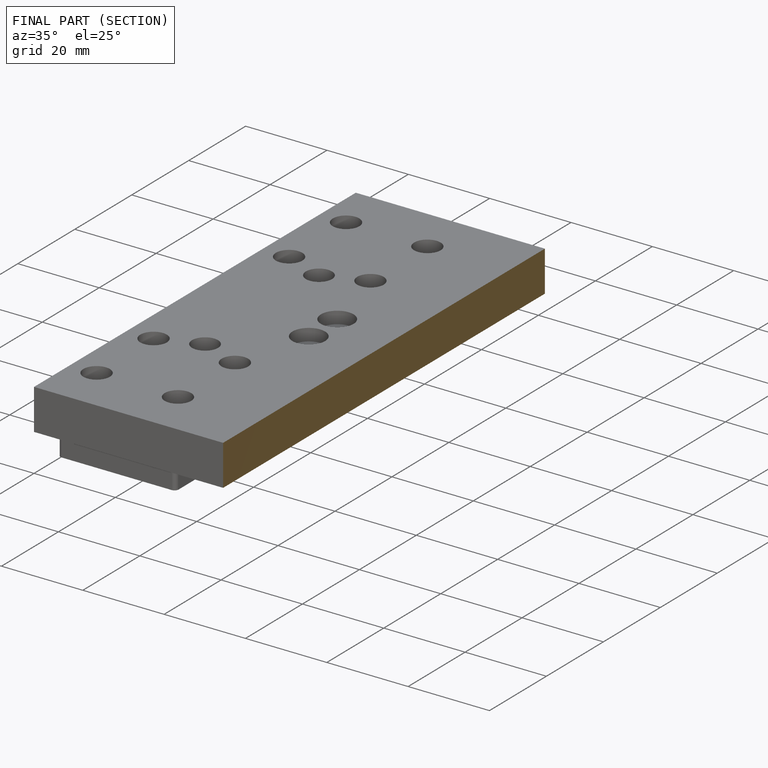
[diagram: finished part — half-section view (interior)]
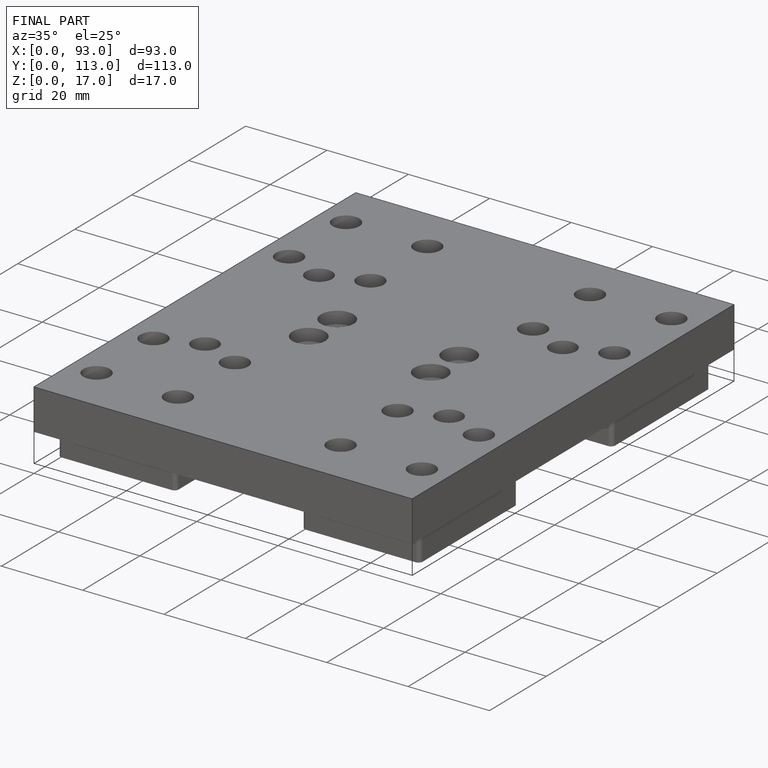
[diagram: finished part — iso view with bounding-box wireframe]
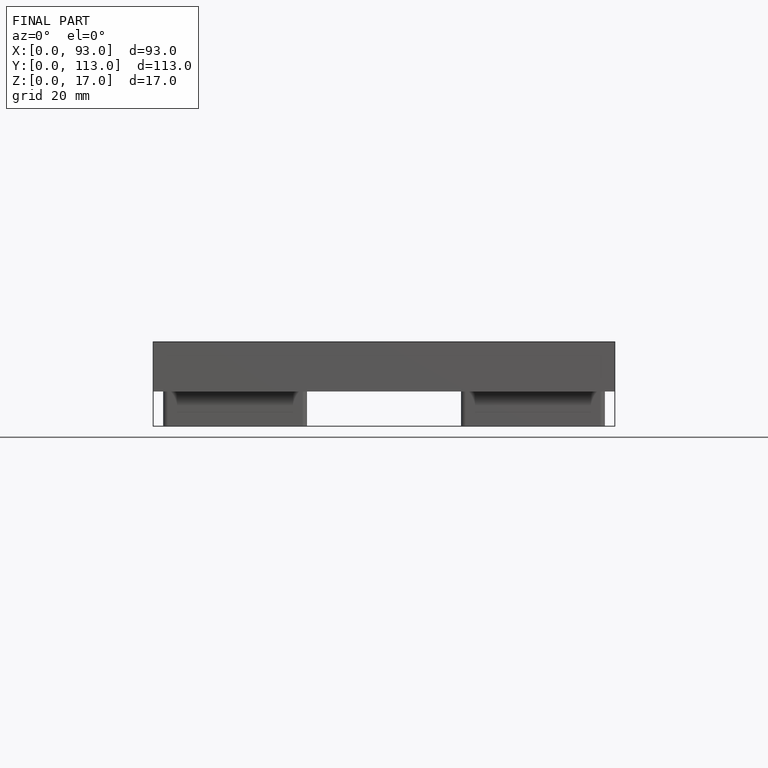
[diagram: finished part — front view with bounding-box wireframe]
